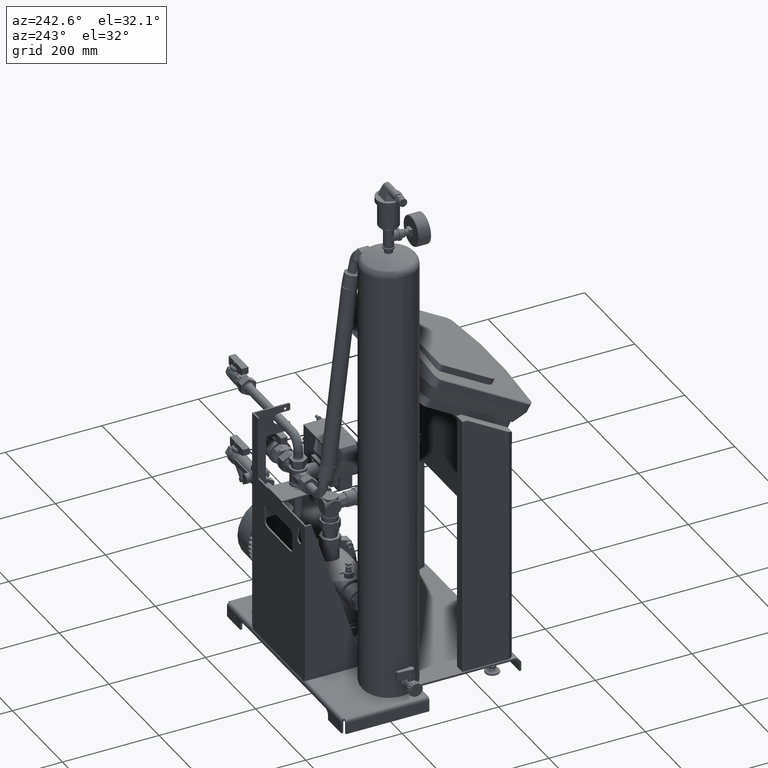
[diagram: clean part render]
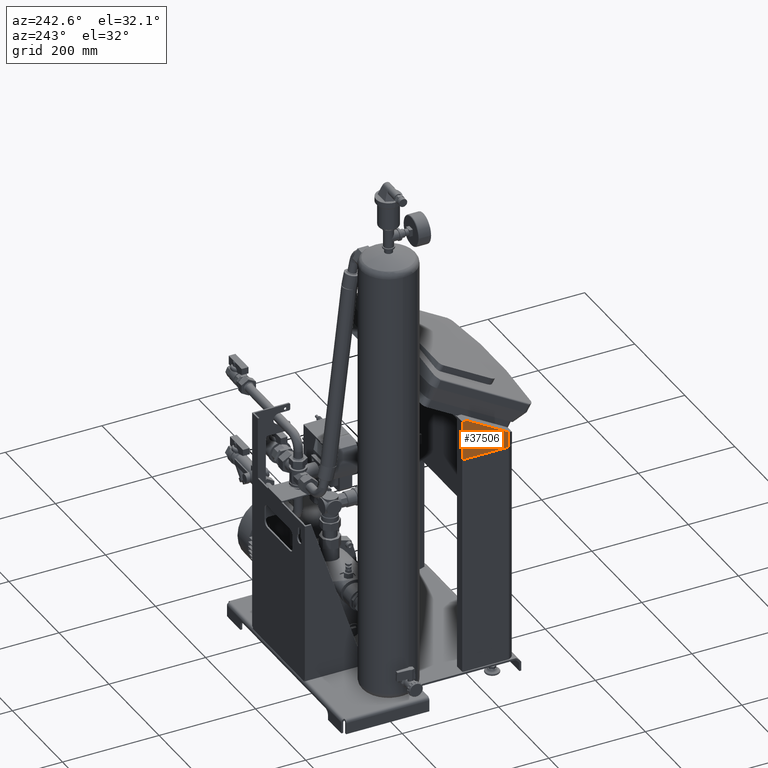
[diagram: same view with one face highlighted and labeled with its STEP entity id]
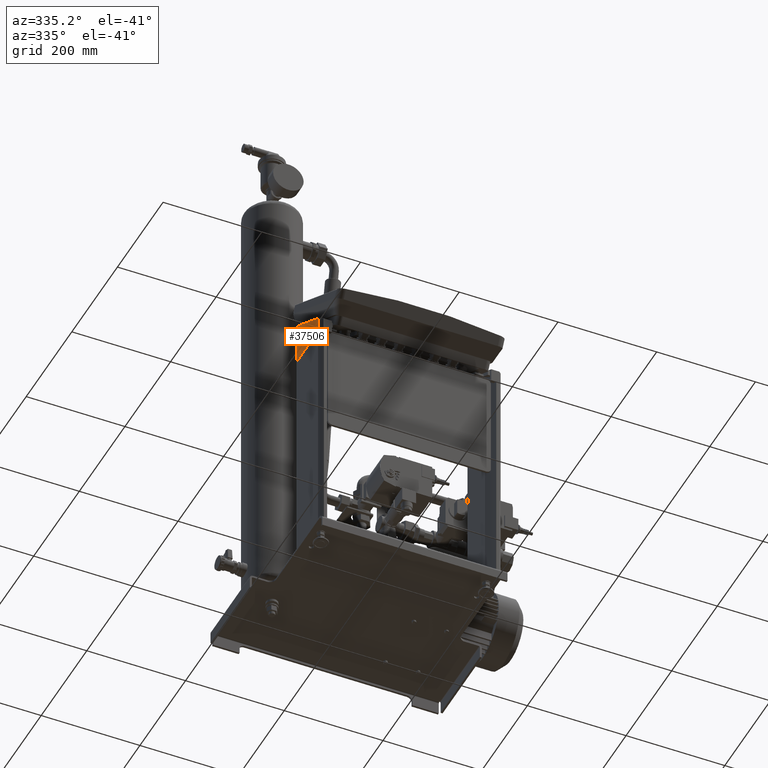
[diagram: same view with one face highlighted and labeled with its STEP entity id]
A machine part, auxiliary view. The second image highlights one B-rep face of the part: STEP entity #37506.
A second angle (auxiliary view) of the same face is appended — the face is thin or edge-on in the first view.
In plain terms, the highlighted face is a freeform B-spline surface patch.
Its self-contained STEP definition (entity closure, byte-faithful):
#36882=CARTESIAN_POINT('',(-140.30669703567031,-251.2303243909997,489.75007423500006));
#36883=VERTEX_POINT('',#36882);
#36891=CARTESIAN_POINT('',(-140.30669703567031,-156.89549911949265,489.75007423500006));
#36892=VERTEX_POINT('',#36891);
#36893=CARTESIAN_POINT('',(-140.30669703567031,-251.2303243909997,489.75007423500006));
#36894=DIRECTION('',(0.0,1.0,0.0));
#36895=VECTOR('',#36894,94.334825271507043);
#36896=LINE('',#36893,#36895);
#36897=EDGE_CURVE('',#36883,#36892,#36896,.T.);
#36974=CARTESIAN_POINT('',(-140.30669703567031,-165.59075534908354,571.75007423500017));
#36975=VERTEX_POINT('',#36974);
#36982=CARTESIAN_POINT('',(-140.30669703567031,-251.2303243909997,522.30604599536616));
#36983=VERTEX_POINT('',#36982);
#36984=CARTESIAN_POINT('',(-140.30669703567031,-165.59075534908348,571.75007423500006));
#36985=DIRECTION('',(0.0,-0.866025403784439,-0.5));
#36986=VECTOR('',#36985,98.888056479267775);
#36987=LINE('',#36984,#36986);
#36988=EDGE_CURVE('',#36975,#36983,#36987,.T.);
#37465=CARTESIAN_POINT('',(-140.30669703567031,-156.89549911949265,571.75007423500017));
#37466=VERTEX_POINT('',#37465);
#37467=CARTESIAN_POINT('',(-140.30669703567031,-156.89549911949265,489.75007423500006));
#37468=DIRECTION('',(0.0,0.0,1.0));
#37469=VECTOR('',#37468,82.000000000000114);
#37470=LINE('',#37467,#37469);
#37471=EDGE_CURVE('',#36892,#37466,#37470,.T.);
#37484=CARTESIAN_POINT('',(-140.30669703567031,-251.23032439099973,571.75007423500017));
#37485=CARTESIAN_POINT('',(-140.30669703567031,-156.89549911949265,571.75007423500017));
#37486=CARTESIAN_POINT('',(-140.30669703567031,-251.23032439099973,489.75007423500006));
#37487=CARTESIAN_POINT('',(-140.30669703567031,-156.89549911949268,489.75007423499994));
#37488=B_SPLINE_SURFACE_WITH_KNOTS('',1,1,((#37484,#37486),(#37485,#37487)),.UNSPECIFIED.,.F.,.F.,.U.,(2,2),(2,2),(0.0,94.334825271507071),(0.0,82.000000000000114),.UNSPECIFIED.);
#37489=ORIENTED_EDGE('',*,*,#36988,.F.);
#37490=CARTESIAN_POINT('',(-140.30669703567031,-165.59075534908354,571.75007423500017));
#37491=DIRECTION('',(0.0,1.0,0.0));
#37492=VECTOR('',#37491,8.695256229590882);
#37493=LINE('',#37490,#37492);
#37494=EDGE_CURVE('',#36975,#37466,#37493,.T.);
#37495=ORIENTED_EDGE('',*,*,#37494,.T.);
#37496=ORIENTED_EDGE('',*,*,#37471,.F.);
#37497=ORIENTED_EDGE('',*,*,#36897,.F.);
#37498=CARTESIAN_POINT('',(-140.30669703567031,-251.2303243909997,489.75007423500006));
#37499=DIRECTION('',(0.0,0.0,1.0));
#37500=VECTOR('',#37499,32.555971760366106);
#37501=LINE('',#37498,#37500);
#37502=EDGE_CURVE('',#36883,#36983,#37501,.T.);
#37503=ORIENTED_EDGE('',*,*,#37502,.T.);
#37504=EDGE_LOOP('',(#37489,#37495,#37496,#37497,#37503));
#37505=FACE_OUTER_BOUND('',#37504,.T.);
#37506=ADVANCED_FACE('',(#37505),#37488,.T.);